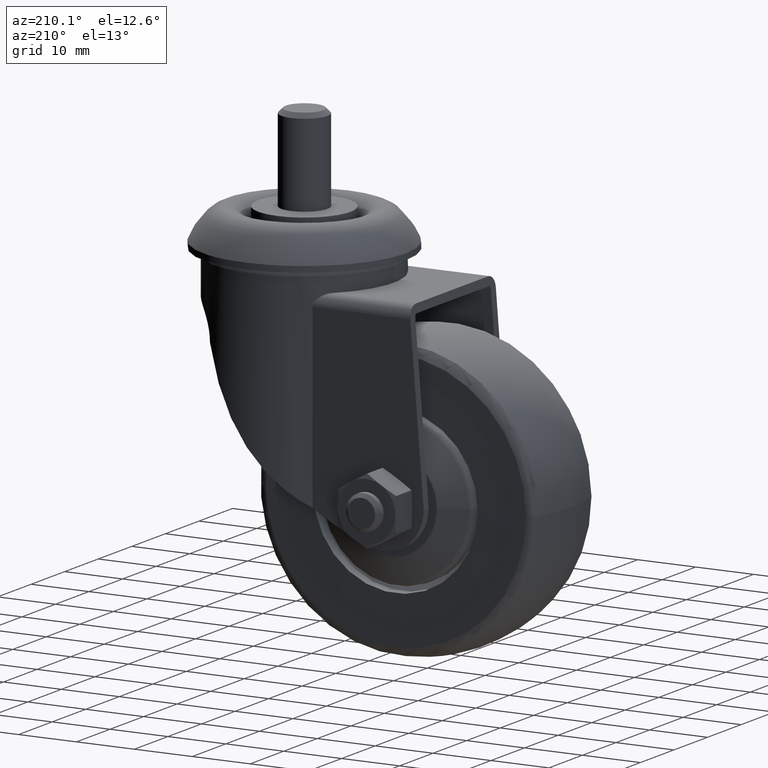
[diagram: clean part render]
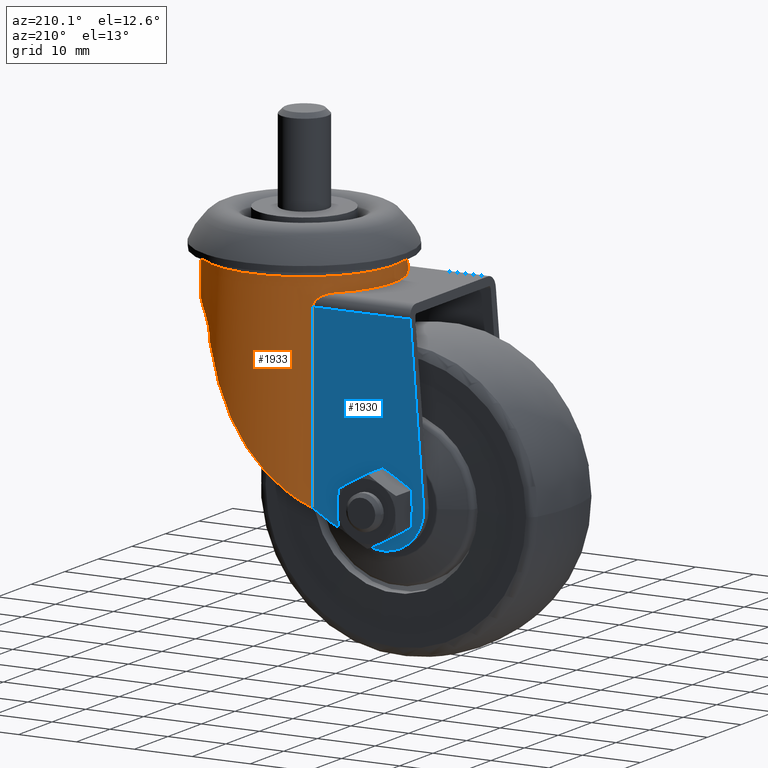
[diagram: same view with the hole feature highlighted: cylindrical wall and planar end face, labeled with their STEP entity ids]
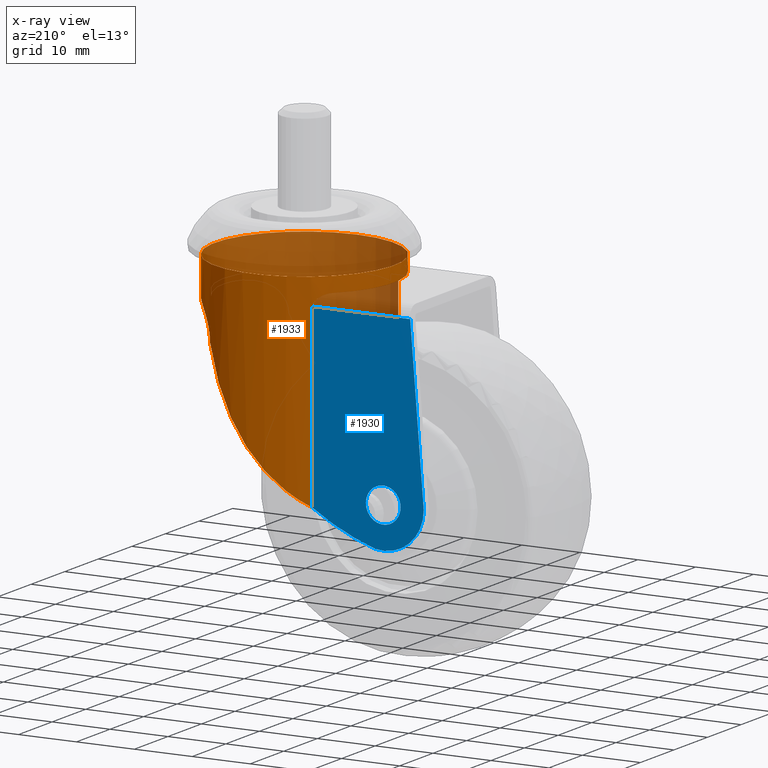
[diagram: x-ray of the same camera — body ghosted, the hole faces saturated]
A machine part, auxiliary view. The highlighted faces form one hole feature of diameter 31 mm: the cylindrical wall (entity #1933, orange) and its adjacent planar end face (entity #1930, blue) — they share a circular edge in the B-rep.
The next image is the same camera in x-ray (body ghosted, the hole faces saturated) — the bore reads through the body.
Wall:
#41=B_SPLINE_CURVE_WITH_KNOTS('',3,(#3519,#3520,#3521,#3522,#3523,#3524,
#3525,#3526,#3527,#3528,#3529,#3530),.UNSPECIFIED.,.F.,.F.,(4,2,2,2,2,4),
(0.348451462817788,0.453552112797265,0.558652762776742,0.647039692718965,
0.691233157690077,0.735426622661188),.UNSPECIFIED.);
#42=B_SPLINE_CURVE_WITH_KNOTS('',3,(#3560,#3561,#3562,#3563,#3564,#3565,
#3566,#3567,#3568,#3569,#3570,#3571),.UNSPECIFIED.,.F.,.F.,(4,2,2,2,2,4),
(0.,0.0441934649711115,0.0883869299422231,0.176773859884446,0.281874509863923,
0.3869751598434),.UNSPECIFIED.);
#43=B_SPLINE_CURVE_WITH_KNOTS('',3,(#3580,#3581,#3582,#3583,#3584,#3585,
#3586,#3587,#3588,#3589,#3590,#3591,#3592,#3593,#3594,#3595,#3596,#3597),
 .UNSPECIFIED.,.F.,.F.,(4,2,2,2,2,2,2,2,4),(0.000214958680645781,0.184618258226361,
0.369236516452723,0.458455016030242,0.547673515607762,0.712663639814894,
0.877653764022026,1.28408149371064,1.31246598816829),.UNSPECIFIED.);
#44=B_SPLINE_CURVE_WITH_KNOTS('',3,(#3598,#3599,#3600,#3601,#3602,#3603,
#3604,#3605,#3606,#3607,#3608,#3609),.UNSPECIFIED.,.F.,.F.,(4,2,2,2,2,4),
(2.30642137518077,2.9852072192752,4.01108003594619,4.52401644428169,5.03695285261719,
5.41753060156082),.UNSPECIFIED.);
#45=B_SPLINE_CURVE_WITH_KNOTS('',3,(#3611,#3612,#3613,#3614,#3615,#3616,
#3617,#3618),.UNSPECIFIED.,.F.,.F.,(4,2,2,4),(8.37299097462802,8.75356872357165,
9.26650513190715,9.5941126650864),.UNSPECIFIED.);
#46=B_SPLINE_CURVE_WITH_KNOTS('',3,(#3623,#3624,#3625,#3626,#3627,#3628,
#3629,#3630),.UNSPECIFIED.,.F.,.F.,(4,2,2,4),(9.5941126650864,9.77944154024265,
10.8053143569136,11.4841002010081),.UNSPECIFIED.);
#47=B_SPLINE_CURVE_WITH_KNOTS('',3,(#3631,#3632,#3633,#3634,#3635,#3636,
#3637,#3638,#3639,#3640,#3641,#3642,#3643,#3644,#3645,#3646,#3647,#3648),
 .UNSPECIFIED.,.F.,.F.,(4,2,2,2,2,2,2,2,4),(2.06855245863023,2.09693695308788,
2.50336468277649,2.66835480698362,2.83334493119076,2.92256343076828,3.0117819303458,
3.19640018857216,3.38080348811787),.UNSPECIFIED.);
#152=LINE('',#3538,#222);
#154=LINE('',#3545,#224);
#159=LINE('',#3620,#229);
#222=VECTOR('',#2788,1000.);
#224=VECTOR('',#2794,1000.);
#229=VECTOR('',#2817,15.5);
#273=CYLINDRICAL_SURFACE('',#2340,15.5);
#435=FACE_OUTER_BOUND('',#580,.T.);
#580=EDGE_LOOP('',(#1574,#1575,#1576,#1577,#1578,#1579,#1580,#1581,#1582,
#1583,#1584,#1585,#1586,#1587));
#719=CIRCLE('',#2339,15.5);
#720=CIRCLE('',#2341,15.5);
#721=CIRCLE('',#2342,15.5);
#922=VERTEX_POINT('',#3516);
#923=VERTEX_POINT('',#3518);
#926=VERTEX_POINT('',#3536);
#928=VERTEX_POINT('',#3543);
#929=VERTEX_POINT('',#3544);
#935=VERTEX_POINT('',#3558);
#936=VERTEX_POINT('',#3576);
#937=VERTEX_POINT('',#3577);
#938=VERTEX_POINT('',#3579);
#939=VERTEX_POINT('',#3610);
#940=VERTEX_POINT('',#3619);
#941=VERTEX_POINT('',#3622);
#1143=EDGE_CURVE('',#923,#922,#41,.T.);
#1147=EDGE_CURVE('',#922,#926,#152,.T.);
#1150=EDGE_CURVE('',#928,#929,#154,.F.);
#1158=EDGE_CURVE('',#929,#935,#42,.T.);
#1160=EDGE_CURVE('',#935,#923,#719,.F.);
#1161=EDGE_CURVE('',#936,#937,#720,.T.);
#1162=EDGE_CURVE('',#938,#936,#43,.T.);
#1163=EDGE_CURVE('',#938,#928,#44,.T.);
#1164=EDGE_CURVE('',#926,#939,#45,.T.);
#1165=EDGE_CURVE('',#939,#940,#159,.T.);
#1166=EDGE_CURVE('',#940,#940,#721,.T.);
#1167=EDGE_CURVE('',#939,#941,#46,.T.);
#1168=EDGE_CURVE('',#937,#941,#47,.T.);
#1574=ORIENTED_EDGE('',*,*,#1161,.F.);
#1575=ORIENTED_EDGE('',*,*,#1162,.F.);
#1576=ORIENTED_EDGE('',*,*,#1163,.T.);
#1577=ORIENTED_EDGE('',*,*,#1150,.T.);
#1578=ORIENTED_EDGE('',*,*,#1158,.T.);
#1579=ORIENTED_EDGE('',*,*,#1160,.T.);
#1580=ORIENTED_EDGE('',*,*,#1143,.T.);
#1581=ORIENTED_EDGE('',*,*,#1147,.T.);
#1582=ORIENTED_EDGE('',*,*,#1164,.T.);
#1583=ORIENTED_EDGE('',*,*,#1165,.T.);
#1584=ORIENTED_EDGE('',*,*,#1166,.T.);
#1585=ORIENTED_EDGE('',*,*,#1165,.F.);
#1586=ORIENTED_EDGE('',*,*,#1167,.T.);
#1587=ORIENTED_EDGE('',*,*,#1168,.F.);
#1933=ADVANCED_FACE('',(#435),#273,.T.);
#2339=AXIS2_PLACEMENT_3D('',#3574,#2811,#2812);
#2340=AXIS2_PLACEMENT_3D('',#3575,#2813,#2814);
#2341=AXIS2_PLACEMENT_3D('',#3578,#2815,#2816);
#2342=AXIS2_PLACEMENT_3D('',#3621,#2818,#2819);
#2788=DIRECTION('',(0.,-1.,0.));
#2794=DIRECTION('',(0.,-1.,0.));
#2811=DIRECTION('center_axis',(0.,-1.,0.));
#2812=DIRECTION('ref_axis',(0.,0.,-1.));
#2813=DIRECTION('center_axis',(0.,-1.,0.));
#2814=DIRECTION('ref_axis',(0.,0.,-1.));
#2815=DIRECTION('center_axis',(0.,-1.,0.));
#2816=DIRECTION('ref_axis',(0.,0.,-1.));
#2817=DIRECTION('',(0.,1.,0.));
#2818=DIRECTION('center_axis',(0.,-1.,0.));
#2819=DIRECTION('ref_axis',(0.,0.,-1.));
#3516=CARTESIAN_POINT('',(12.1859487180979,29.,12.75));
#3518=CARTESIAN_POINT('',(9.83364428293636,31.,10.75));
#3519=CARTESIAN_POINT('Ctrl Pts',(9.83364428293635,31.,10.75));
#3520=CARTESIAN_POINT('Ctrl Pts',(10.0766189038566,31.,11.002385213713));
#3521=CARTESIAN_POINT('Ctrl Pts',(10.348779879414,30.9501161296566,11.2665221961219));
#3522=CARTESIAN_POINT('Ctrl Pts',(10.8904672109643,30.7491982603942,11.7550142127635));
#3523=CARTESIAN_POINT('Ctrl Pts',(11.1599565717783,30.5987685422733,11.9796585824729));
#3524=CARTESIAN_POINT('Ctrl Pts',(11.5901851069081,30.2590075947401,12.3194195300061));
#3525=CARTESIAN_POINT('Ctrl Pts',(11.7908807217402,30.0557792842429,12.4689994764327));
#3526=CARTESIAN_POINT('Ctrl Pts',(12.0147233717723,29.6943057444268,12.6302517901344));
#3527=CARTESIAN_POINT('Ctrl Pts',(12.0765928946173,29.5644309099621,12.6738111202941));
#3528=CARTESIAN_POINT('Ctrl Pts',(12.1622069854228,29.2909295205527,12.7336635881192));
#3529=CARTESIAN_POINT('Ctrl Pts',(12.1859487180979,29.1473115499037,12.75));
#3530=CARTESIAN_POINT('Ctrl Pts',(12.1859487180979,29.,12.75));
#3536=CARTESIAN_POINT('',(12.1859487180979,-1.79022198341661,12.75));
#3538=CARTESIAN_POINT('',(12.1859487180979,-10.,12.75));
#3543=CARTESIAN_POINT('',(12.1859487180979,-1.79022198341661,-12.75));
#3544=CARTESIAN_POINT('',(12.1859487180979,29.,-12.75));
#3545=CARTESIAN_POINT('',(12.1859487180979,-10.,-12.75));
#3558=CARTESIAN_POINT('',(9.83364428293636,31.,-10.75));
#3560=CARTESIAN_POINT('Ctrl Pts',(12.1859487180979,29.,-12.75));
#3561=CARTESIAN_POINT('Ctrl Pts',(12.1859487180979,29.1473115499037,-12.75));
#3562=CARTESIAN_POINT('Ctrl Pts',(12.1622069854228,29.2909295205527,-12.7336635881192));
#3563=CARTESIAN_POINT('Ctrl Pts',(12.0765928946173,29.5644309099621,-12.6738111202941));
#3564=CARTESIAN_POINT('Ctrl Pts',(12.0147233717723,29.6943057444268,-12.6302517901344));
#3565=CARTESIAN_POINT('Ctrl Pts',(11.7908807217402,30.0557792842429,-12.4689994764327));
#3566=CARTESIAN_POINT('Ctrl Pts',(11.5901851069081,30.2590075947401,-12.3194195300061));
#3567=CARTESIAN_POINT('Ctrl Pts',(11.1599565717783,30.5987685422733,-11.9796585824729));
#3568=CARTESIAN_POINT('Ctrl Pts',(10.8904672109643,30.7491982603942,-11.7550142127635));
#3569=CARTESIAN_POINT('Ctrl Pts',(10.348779879414,30.9501161296566,-11.2665221961219));
#3570=CARTESIAN_POINT('Ctrl Pts',(10.0766189038566,31.,-11.002385213713));
#3571=CARTESIAN_POINT('Ctrl Pts',(9.83364428293635,31.,-10.75));
#3574=CARTESIAN_POINT('Origin',(21.,31.,0.));
#3575=CARTESIAN_POINT('Origin',(21.,-10.,0.));
#3576=CARTESIAN_POINT('',(35.9932973540897,27.5,-3.93078038713025));
#3577=CARTESIAN_POINT('',(35.9932973540897,27.5,3.93078038713025));
#3578=CARTESIAN_POINT('Origin',(21.,27.5,0.));
#3579=CARTESIAN_POINT('',(29.9932977378689,21.5021497517872,-12.6242067393576));
#3580=CARTESIAN_POINT('Ctrl Pts',(29.9932977378689,21.5021497517872,-12.6242067393576));
#3581=CARTESIAN_POINT('Ctrl Pts',(29.9935180057424,22.1169217286667,-12.6240498237898));
#3582=CARTESIAN_POINT('Ctrl Pts',(30.0951975286663,22.7720904094336,-12.5534614980559));
#3583=CARTESIAN_POINT('Ctrl Pts',(30.4940184195676,23.9828740382546,-12.2546228803366));
#3584=CARTESIAN_POINT('Ctrl Pts',(30.7902220393283,24.5382524632579,-12.0241247677732));
#3585=CARTESIAN_POINT('Ctrl Pts',(31.2645978394632,25.2027228603067,-11.6159204047823));
#3586=CARTESIAN_POINT('Ctrl Pts',(31.4447314637682,25.4223882703544,-11.4553057853086));
#3587=CARTESIAN_POINT('Ctrl Pts',(31.819863320983,25.819378371724,-11.1016667207777));
#3588=CARTESIAN_POINT('Ctrl Pts',(32.014519109705,25.9969806045207,-10.9085907224024));
#3589=CARTESIAN_POINT('Ctrl Pts',(32.5246109087275,26.4143883716172,-10.3760500141529));
#3590=CARTESIAN_POINT('Ctrl Pts',(32.8897788291003,26.6501124670267,-9.9603849585038));
#3591=CARTESIAN_POINT('Ctrl Pts',(33.5904836691245,27.0119842134176,-9.0584674784341));
#3592=CARTESIAN_POINT('Ctrl Pts',(33.9251496240499,27.1401459356908,-8.57234783164847));
#3593=CARTESIAN_POINT('Ctrl Pts',(34.908749371678,27.4464835018978,-6.97026460926268));
#3594=CARTESIAN_POINT('Ctrl Pts',(35.5150388342119,27.4941263831486,-5.62963642956308));
#3595=CARTESIAN_POINT('Ctrl Pts',(35.940631673981,27.4998331874659,-4.12770035113351));
#3596=CARTESIAN_POINT('Ctrl Pts',(35.9674527806663,27.5000000000058,-4.02936014386106));
#3597=CARTESIAN_POINT('Ctrl Pts',(35.9932973540897,27.5,-3.93078038713024));
#3598=CARTESIAN_POINT('Ctrl Pts',(29.9932977378689,21.5021497517872,-12.6242067393576));
#3599=CARTESIAN_POINT('Ctrl Pts',(29.3187388158155,19.3990833673645,-13.1047525156597));
#3600=CARTESIAN_POINT('Ctrl Pts',(28.4872490177425,17.3560666870069,-13.6142663829032));
#3601=CARTESIAN_POINT('Ctrl Pts',(26.0358367587462,12.427033637842,-14.748996802326));
#3602=CARTESIAN_POINT('Ctrl Pts',(24.2323788789908,9.64963961042752,-15.3019207624449));
#3603=CARTESIAN_POINT('Ctrl Pts',(21.113608727466,5.85336648352828,-15.5346019001106));
#3604=CARTESIAN_POINT('Ctrl Pts',(20.0060427801818,4.65028834836946,-15.5131509747436));
#3605=CARTESIAN_POINT('Ctrl Pts',(17.6662977238057,2.37775034803881,-15.1832879601975));
#3606=CARTESIAN_POINT('Ctrl Pts',(16.4338599329903,1.30822005095406,-14.877200099341));
#3607=CARTESIAN_POINT('Ctrl Pts',(14.1925910306603,-0.427331661649689,-13.9632392097837));
#3608=CARTESIAN_POINT('Ctrl Pts',(13.1724972631915,-1.14987293975866,-13.4319991740032));
#3609=CARTESIAN_POINT('Ctrl Pts',(12.1859487180979,-1.79022198341662,-12.75));
#3610=CARTESIAN_POINT('',(20.9999999999999,5.77179056082043,15.5));
#3611=CARTESIAN_POINT('Ctrl Pts',(12.1859487180979,-1.79022198341662,12.75));
#3612=CARTESIAN_POINT('Ctrl Pts',(13.1724972631915,-1.14987293975866,13.4319991740032));
#3613=CARTESIAN_POINT('Ctrl Pts',(14.1925910306603,-0.427331661649689,13.9632392097837));
#3614=CARTESIAN_POINT('Ctrl Pts',(16.4338599329903,1.30822005095406,14.877200099341));
#3615=CARTESIAN_POINT('Ctrl Pts',(17.6662977238057,2.37775034803882,15.1832879601976));
#3616=CARTESIAN_POINT('Ctrl Pts',(19.5833565442236,4.23974339142459,15.4535596292591));
#3617=CARTESIAN_POINT('Ctrl Pts',(20.3051222927822,4.99272418847964,15.5));
#3618=CARTESIAN_POINT('Ctrl Pts',(20.9999999999999,5.77179056082043,15.5));
#3619=CARTESIAN_POINT('',(21.,33.614,15.5));
#3620=CARTESIAN_POINT('',(21.,-10.,15.5));
#3621=CARTESIAN_POINT('Origin',(21.,33.614,0.));
#3622=CARTESIAN_POINT('',(29.9932977378689,21.5021497517872,12.6242067393576));
#3623=CARTESIAN_POINT('Ctrl Pts',(20.9999999999999,5.77179056082043,15.5));
#3624=CARTESIAN_POINT('Ctrl Pts',(21.3930950628638,6.21251148398362,15.5));
#3625=CARTESIAN_POINT('Ctrl Pts',(21.7775848586787,6.66158081846177,15.4850648345087));
#3626=CARTESIAN_POINT('Ctrl Pts',(24.2323788789908,9.64963961042753,15.3019207624449));
#3627=CARTESIAN_POINT('Ctrl Pts',(26.0358367587462,12.427033637842,14.748996802326));
#3628=CARTESIAN_POINT('Ctrl Pts',(28.4872490177425,17.356066687007,13.6142663829032));
#3629=CARTESIAN_POINT('Ctrl Pts',(29.3187388158155,19.3990833673645,13.1047525156597));
#3630=CARTESIAN_POINT('Ctrl Pts',(29.9932977378689,21.5021497517872,12.6242067393576));
#3631=CARTESIAN_POINT('Ctrl Pts',(35.9932973540897,27.5,3.93078038713024));
#3632=CARTESIAN_POINT('Ctrl Pts',(35.9674527806663,27.5000000000058,4.02936014386105));
#3633=CARTESIAN_POINT('Ctrl Pts',(35.940631673981,27.4998331874659,4.12770035113351));
#3634=CARTESIAN_POINT('Ctrl Pts',(35.5150388342119,27.4941263831486,5.62963642956307));
#3635=CARTESIAN_POINT('Ctrl Pts',(34.908749371678,27.4464835018978,6.97026460926269));
#3636=CARTESIAN_POINT('Ctrl Pts',(33.9251496240499,27.1401459356908,8.57234783164846));
#3637=CARTESIAN_POINT('Ctrl Pts',(33.5904836691245,27.0119842134176,9.0584674784341));
#3638=CARTESIAN_POINT('Ctrl Pts',(32.8897788291003,26.6501124670267,9.9603849585038));
#3639=CARTESIAN_POINT('Ctrl Pts',(32.5246109087275,26.4143883716172,10.3760500141529));
#3640=CARTESIAN_POINT('Ctrl Pts',(32.014519109705,25.9969806045207,10.9085907224024));
#3641=CARTESIAN_POINT('Ctrl Pts',(31.819863320983,25.819378371724,11.1016667207777));
#3642=CARTESIAN_POINT('Ctrl Pts',(31.4447314637682,25.4223882703544,11.4553057853086));
#3643=CARTESIAN_POINT('Ctrl Pts',(31.2645978394632,25.2027228603067,11.6159204047823));
#3644=CARTESIAN_POINT('Ctrl Pts',(30.7902220393283,24.5382524632579,12.0241247677732));
#3645=CARTESIAN_POINT('Ctrl Pts',(30.4940184195676,23.9828740382546,12.2546228803366));
#3646=CARTESIAN_POINT('Ctrl Pts',(30.0951975286663,22.7720904094336,12.5534614980559));
#3647=CARTESIAN_POINT('Ctrl Pts',(29.9935180057424,22.1169217286667,12.6240498237898));
#3648=CARTESIAN_POINT('Ctrl Pts',(29.9932977378689,21.5021497517872,12.6242067393576));
End face:
#154=LINE('',#3545,#224);
#155=LINE('',#3551,#225);
#156=LINE('',#3552,#226);
#224=VECTOR('',#2794,1000.);
#225=VECTOR('',#2799,1000.);
#226=VECTOR('',#2800,1000.);
#303=FACE_BOUND('',#577,.T.);
#342=PLANE('',#2332);
#432=FACE_OUTER_BOUND('',#576,.T.);
#576=EDGE_LOOP('',(#1560,#1561,#1562,#1563,#1564));
#577=EDGE_LOOP('',(#1565));
#716=CIRCLE('',#2333,43.67);
#717=CIRCLE('',#2334,7.);
#718=CIRCLE('',#2335,3.);
#928=VERTEX_POINT('',#3543);
#929=VERTEX_POINT('',#3544);
#930=VERTEX_POINT('',#3546);
#931=VERTEX_POINT('',#3548);
#932=VERTEX_POINT('',#3550);
#933=VERTEX_POINT('',#3553);
#1150=EDGE_CURVE('',#928,#929,#154,.F.);
#1151=EDGE_CURVE('',#928,#930,#716,.F.);
#1152=EDGE_CURVE('',#930,#931,#717,.F.);
#1153=EDGE_CURVE('',#932,#931,#155,.T.);
#1154=EDGE_CURVE('',#929,#932,#156,.T.);
#1155=EDGE_CURVE('',#933,#933,#718,.T.);
#1560=ORIENTED_EDGE('',*,*,#1150,.F.);
#1561=ORIENTED_EDGE('',*,*,#1151,.T.);
#1562=ORIENTED_EDGE('',*,*,#1152,.T.);
#1563=ORIENTED_EDGE('',*,*,#1153,.F.);
#1564=ORIENTED_EDGE('',*,*,#1154,.F.);
#1565=ORIENTED_EDGE('',*,*,#1155,.T.);
#1930=ADVANCED_FACE('',(#432,#303),#342,.F.);
#2332=AXIS2_PLACEMENT_3D('',#3542,#2792,#2793);
#2333=AXIS2_PLACEMENT_3D('',#3547,#2795,#2796);
#2334=AXIS2_PLACEMENT_3D('',#3549,#2797,#2798);
#2335=AXIS2_PLACEMENT_3D('',#3554,#2801,#2802);
#2792=DIRECTION('center_axis',(0.,0.,1.));
#2793=DIRECTION('ref_axis',(1.,0.,0.));
#2794=DIRECTION('',(0.,-1.,0.));
#2795=DIRECTION('center_axis',(0.,0.,1.));
#2796=DIRECTION('ref_axis',(1.,0.,0.));
#2797=DIRECTION('center_axis',(0.,0.,1.));
#2798=DIRECTION('ref_axis',(1.,0.,0.));
#2799=DIRECTION('',(-0.0803841899203101,-0.996763955011845,0.));
#2800=DIRECTION('',(-1.,0.,0.));
#2801=DIRECTION('center_axis',(0.,0.,1.));
#2802=DIRECTION('ref_axis',(1.,0.,0.));
#3542=CARTESIAN_POINT('Origin',(18.,-10.,-12.75));
#3543=CARTESIAN_POINT('',(12.1859487180979,-1.79022198341661,-12.75));
#3544=CARTESIAN_POINT('',(12.1859487180979,29.,-12.75));
#3545=CARTESIAN_POINT('',(12.1859487180979,-10.,-12.75));
#3546=CARTESIAN_POINT('',(1.37985718109022,-6.85954082123833,-12.75));
#3547=CARTESIAN_POINT('Origin',(-11.59,34.84,-12.75));
#3548=CARTESIAN_POINT('',(-7.,5.60905217671798E-15,-12.75));
#3549=CARTESIAN_POINT('Origin',(-6.91380957909896E-7,0.00311116263636366,
-12.75));
#3550=CARTESIAN_POINT('',(-4.66129032258065,29.,-12.75));
#3551=CARTESIAN_POINT('',(-7.63970018092529,-7.93228224347377,-12.75));
#3552=CARTESIAN_POINT('',(18.,29.,-12.75));
#3553=CARTESIAN_POINT('',(-3.,-3.67394039744206E-16,-12.75));
#3554=CARTESIAN_POINT('Origin',(0.,0.,-12.75));